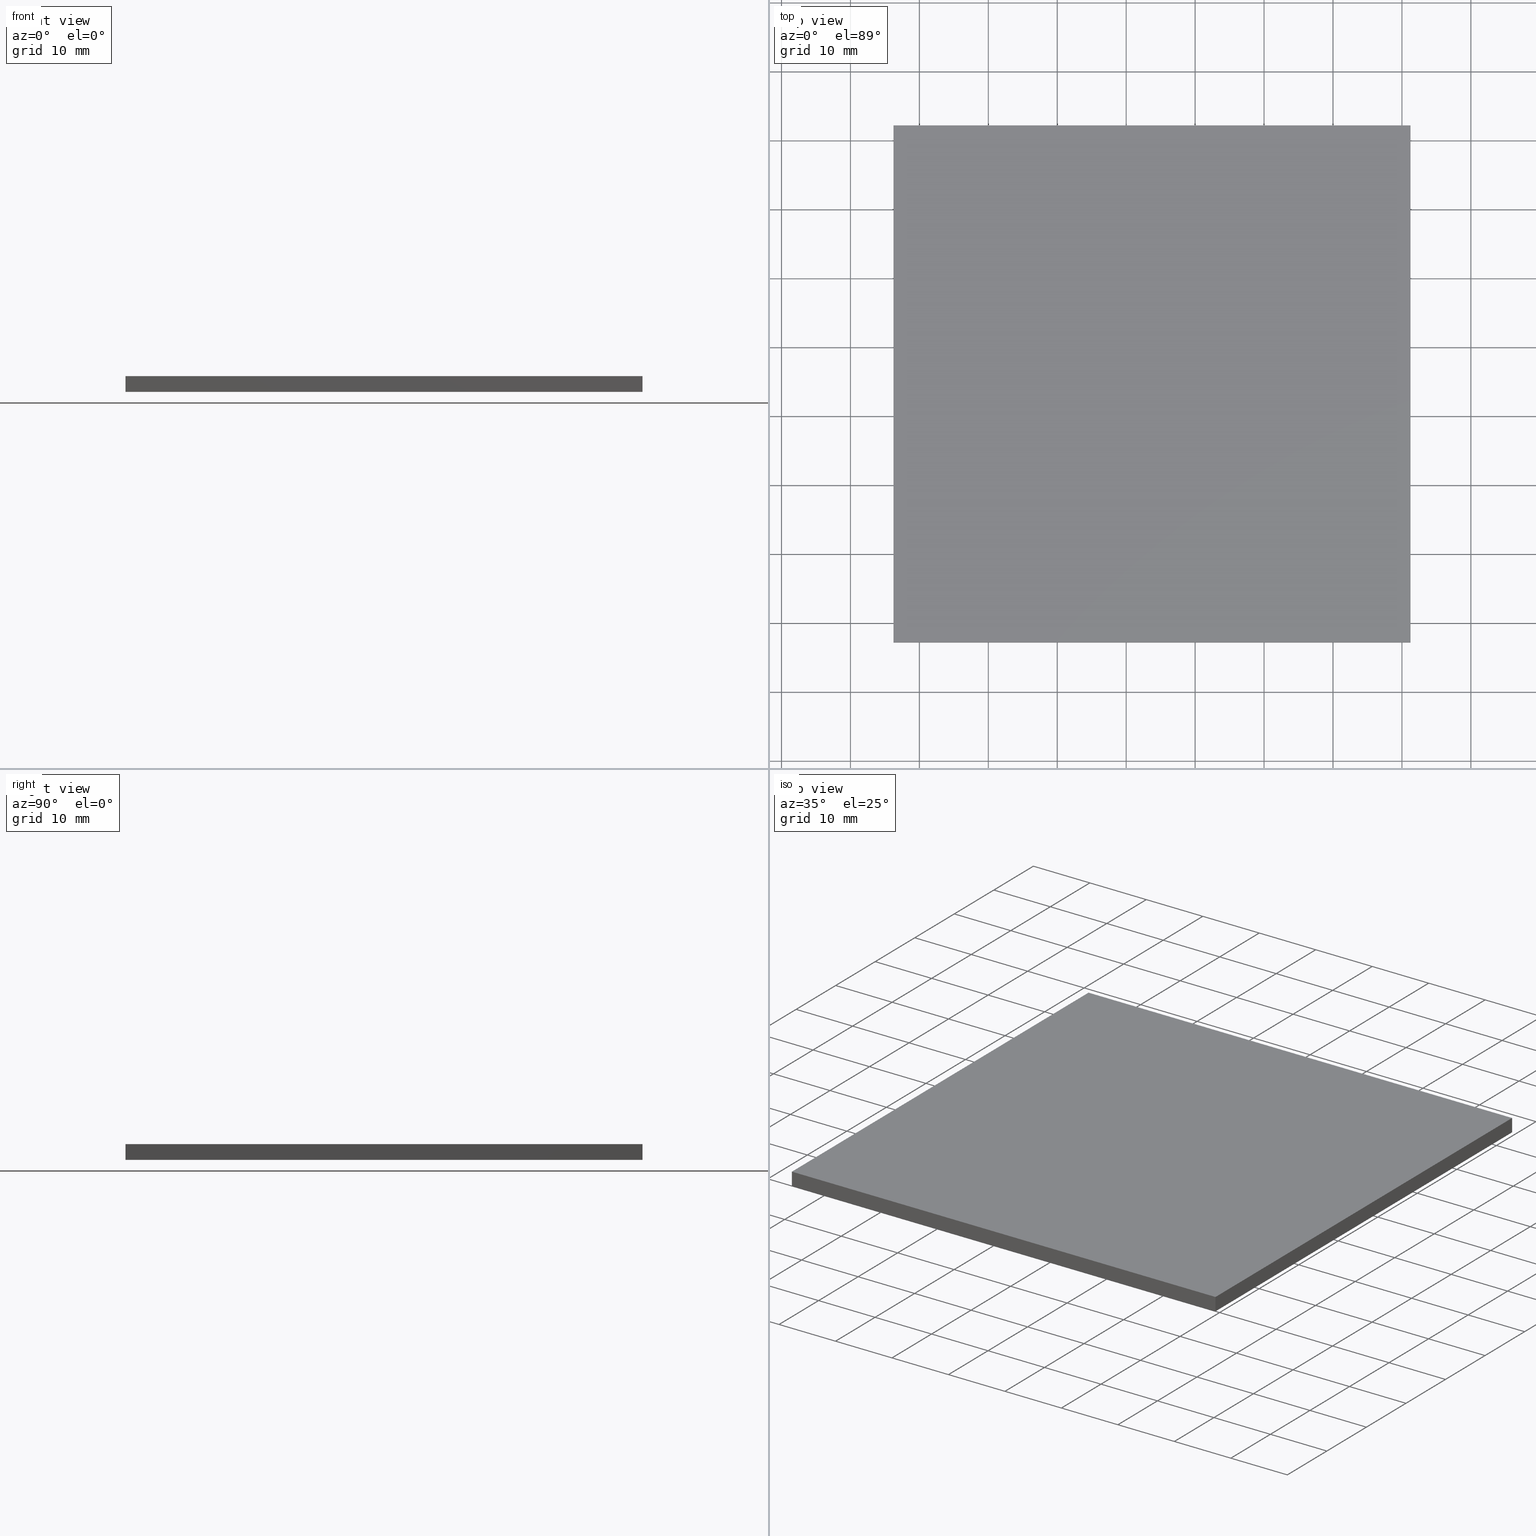
[diagram: canonical four-view strip — front | top / right | iso, engineering-drawing reading convention]
A machine part, canonical four-view strip (front | top / right | iso — engineering-drawing reading convention). The complete STEP part file that produces these views, byte-faithful:
ISO-10303-21;
HEADER;
FILE_DESCRIPTION (( 'STEP AP214' ),
    '1' );
FILE_NAME ('302527.STEP',
    '2019-08-13T07:13:10',
    ( '' ),
    ( '' ),
    'SwSTEP 2.0',
    'SolidWorks 2016',
    '' );
FILE_SCHEMA (( 'AUTOMOTIVE_DESIGN' ));
ENDSEC;

DATA;
#1 = PLANE ( 'NONE',  #106 ) ;
#2 = PRODUCT_DEFINITION ( 'δ֪', '', #193, #53 ) ;
#3 = CARTESIAN_POINT ( 'NONE',  ( 341.2438073276552500, 222.1897255035797800, 0.0000000000000000000 ) ) ;
#4 = ORIENTED_EDGE ( 'NONE', *, *, #142, .F. ) ;
#5 = AXIS2_PLACEMENT_3D ( 'NONE', #35, #39, #117 ) ;
#6 = LINE ( 'NONE', #69, #164 ) ;
#7 = SURFACE_SIDE_STYLE ('',( #42 ) ) ;
#8 = APPLICATION_PROTOCOL_DEFINITION ( 'draft international standard', 'automotive_design', 1998, #133 ) ;
#9 = PLANE ( 'NONE',  #74 ) ;
#10 = CARTESIAN_POINT ( 'NONE',  ( 341.2438073276552500, 222.1897255035797800, 2.299999999999999800 ) ) ;
#11 = ORIENTED_EDGE ( 'NONE', *, *, #107, .F. ) ;
#12 = LINE ( 'NONE', #37, #75 ) ;
#13 = FACE_OUTER_BOUND ( 'NONE', #96, .T. ) ;
#14 = MANIFOLD_SOLID_BREP ( '͹̨-����1', #131 ) ;
#15 = FACE_OUTER_BOUND ( 'NONE', #178, .T. ) ;
#16 = ORIENTED_EDGE ( 'NONE', *, *, #163, .T. ) ;
#17 = DIRECTION ( 'NONE',  ( -0.0000000000000000000, -0.0000000000000000000, -1.000000000000000000 ) ) ;
#18 = PRODUCT_CONTEXT ( 'NONE', #133, 'mechanical' ) ;
#19 = VECTOR ( 'NONE', #130, 1000.000000000000000 ) ;
#20 =( NAMED_UNIT ( * ) SI_UNIT ( $, .STERADIAN. ) SOLID_ANGLE_UNIT ( ) );
#21 = DIRECTION ( 'NONE',  ( -1.000000000000000000, -0.0000000000000000000, -0.0000000000000000000 ) ) ;
#22 = CARTESIAN_POINT ( 'NONE',  ( 266.2438073276552500, 147.1897255035798100, 2.299999999999999800 ) ) ;
#23 = VERTEX_POINT ( 'NONE', #189 ) ;
#24 =( NAMED_UNIT ( * ) SI_UNIT ( $, .STERADIAN. ) SOLID_ANGLE_UNIT ( ) );
#25 = VECTOR ( 'NONE', #46, 1000.000000000000000 ) ;
#26 = EDGE_CURVE ( 'NONE', #89, #54, #195, .T. ) ;
#27 = FACE_OUTER_BOUND ( 'NONE', #40, .T. ) ;
#28 = PRODUCT_DEFINITION_SHAPE ( 'NONE', 'NONE',  #2 ) ;
#29 = ORIENTED_EDGE ( 'NONE', *, *, #121, .T. ) ;
#30 = ADVANCED_FACE ( 'NONE', ( #169 ), #127, .F. ) ;
#31 = ADVANCED_FACE ( 'NONE', ( #173 ), #146, .T. ) ;
#32 =( NAMED_UNIT ( * ) PLANE_ANGLE_UNIT ( ) SI_UNIT ( $, .RADIAN. ) );
#33 = LINE ( 'NONE', #162, #202 ) ;
#34 = SURFACE_STYLE_USAGE ( .BOTH. , #65 ) ;
#35 = CARTESIAN_POINT ( 'NONE',  ( 266.2438073276553000, 222.1897255035797800, 2.299999999999999800 ) ) ;
#36 = DIRECTION ( 'NONE',  ( 7.401486830834381200E-016, 1.000000000000000000, 0.0000000000000000000 ) ) ;
#37 = CARTESIAN_POINT ( 'NONE',  ( 266.2438073276553000, 222.1897255035797800, 2.299999999999999800 ) ) ;
#38 = CARTESIAN_POINT ( 'NONE',  ( 266.2438073276553000, 222.1897255035797800, 2.299999999999999800 ) ) ;
#39 = DIRECTION ( 'NONE',  ( 0.0000000000000000000, -1.000000000000000000, 0.0000000000000000000 ) ) ;
#40 = EDGE_LOOP ( 'NONE', ( #16, #4, #160, #94 ) ) ;
#41 = AXIS2_PLACEMENT_3D ( 'NONE', #68, #145, #174 ) ;
#42 = SURFACE_STYLE_FILL_AREA ( #120 ) ;
#43 = FACE_OUTER_BOUND ( 'NONE', #50, .T. ) ;
#44 = DIRECTION ( 'NONE',  ( 1.000000000000000000, 0.0000000000000000000, 0.0000000000000000000 ) ) ;
#45 = DIRECTION ( 'NONE',  ( -7.401486830834381200E-016, -1.000000000000000000, 0.0000000000000000000 ) ) ;
#46 = DIRECTION ( 'NONE',  ( -1.000000000000000000, -0.0000000000000000000, -0.0000000000000000000 ) ) ;
#47 = DIRECTION ( 'NONE',  ( 0.0000000000000000000, 1.000000000000000000, 0.0000000000000000000 ) ) ;
#48 = AXIS2_PLACEMENT_3D ( 'NONE', #22, #47, #196 ) ;
#49 = ORIENTED_EDGE ( 'NONE', *, *, #110, .T. ) ;
#50 = EDGE_LOOP ( 'NONE', ( #139, #73, #51, #70 ) ) ;
#51 = ORIENTED_EDGE ( 'NONE', *, *, #26, .F. ) ;
#52 =( NAMED_UNIT ( * ) SI_UNIT ( $, .STERADIAN. ) SOLID_ANGLE_UNIT ( ) );
#53 = PRODUCT_DEFINITION_CONTEXT ( 'detailed design', #182, 'design' ) ;
#54 = VERTEX_POINT ( 'NONE', #80 ) ;
#55 = VECTOR ( 'NONE', #72, 1000.000000000000000 ) ;
#56 = MECHANICAL_DESIGN_GEOMETRIC_PRESENTATION_REPRESENTATION (  '', ( #187 ), #156 ) ;
#57 = DIRECTION ( 'NONE',  ( -0.0000000000000000000, -0.0000000000000000000, -1.000000000000000000 ) ) ;
#58 = DIRECTION ( 'NONE',  ( -0.0000000000000000000, 0.0000000000000000000, 1.000000000000000000 ) ) ;
#59 =( NAMED_UNIT ( * ) PLANE_ANGLE_UNIT ( ) SI_UNIT ( $, .RADIAN. ) );
#60 = VECTOR ( 'NONE', #129, 1000.000000000000000 ) ;
#61 =( NAMED_UNIT ( * ) PLANE_ANGLE_UNIT ( ) SI_UNIT ( $, .RADIAN. ) );
#62 = ORIENTED_EDGE ( 'NONE', *, *, #163, .F. ) ;
#63 = ORIENTED_EDGE ( 'NONE', *, *, #115, .F. ) ;
#64 = ADVANCED_FACE ( 'NONE', ( #15 ), #148, .F. ) ;
#65 = SURFACE_SIDE_STYLE ('',( #71 ) ) ;
#66 =( LENGTH_UNIT ( ) NAMED_UNIT ( * ) SI_UNIT ( .MILLI., .METRE. ) );
#67 = ORIENTED_EDGE ( 'NONE', *, *, #87, .T. ) ;
#68 = CARTESIAN_POINT ( 'NONE',  ( 0.0000000000000000000, 0.0000000000000000000, 0.0000000000000000000 ) ) ;
#69 = CARTESIAN_POINT ( 'NONE',  ( 341.2438073276552500, 222.1897255035797800, 2.299999999999999800 ) ) ;
#70 = ORIENTED_EDGE ( 'NONE', *, *, #86, .T. ) ;
#71 = SURFACE_STYLE_FILL_AREA ( #158 ) ;
#72 = DIRECTION ( 'NONE',  ( -0.0000000000000000000, -0.0000000000000000000, -1.000000000000000000 ) ) ;
#73 = ORIENTED_EDGE ( 'NONE', *, *, #87, .F. ) ;
#74 = AXIS2_PLACEMENT_3D ( 'NONE', #10, #168, #184 ) ;
#75 = VECTOR ( 'NONE', #21, 1000.000000000000000 ) ;
#76 = PRODUCT ( '302527', '302527', '', ( #18 ) ) ;
#77 = LINE ( 'NONE', #153, #55 ) ;
#78 = CARTESIAN_POINT ( 'NONE',  ( 341.2438073276552500, 147.1897255035798100, 2.299999999999999800 ) ) ;
#79 = EDGE_CURVE ( 'NONE', #201, #170, #33, .T. ) ;
#80 = CARTESIAN_POINT ( 'NONE',  ( 341.2438073276552500, 222.1897255035797800, 2.299999999999999800 ) ) ;
#81 = COLOUR_RGB ( '',1.000000000000000000, 1.000000000000000000, 1.000000000000000000 ) ;
#82 = PRESENTATION_STYLE_ASSIGNMENT (( #34 ) ) ;
#83 = PLANE ( 'NONE',  #48 ) ;
#84 = CARTESIAN_POINT ( 'NONE',  ( 0.0000000000000000000, 0.0000000000000000000, 0.0000000000000000000 ) ) ;
#85 = ORIENTED_EDGE ( 'NONE', *, *, #86, .F. ) ;
#86 = EDGE_CURVE ( 'NONE', #89, #199, #109, .T. ) ;
#87 = EDGE_CURVE ( 'NONE', #54, #23, #6, .T. ) ;
#88 = ADVANCED_FACE ( 'NONE', ( #27 ), #1, .F. ) ;
#89 = VERTEX_POINT ( 'NONE', #191 ) ;
#90 = EDGE_CURVE ( 'NONE', #199, #23, #183, .T. ) ;
#91 = AXIS2_PLACEMENT_3D ( 'NONE', #84, #99, #44 ) ;
#92 = DIRECTION ( 'NONE',  ( -0.0000000000000000000, 1.000000000000000000, -0.0000000000000000000 ) ) ;
#93 =( GEOMETRIC_REPRESENTATION_CONTEXT ( 3 ) GLOBAL_UNCERTAINTY_ASSIGNED_CONTEXT ( ( #159 ) ) GLOBAL_UNIT_ASSIGNED_CONTEXT ( ( #167, #59, #20 ) ) REPRESENTATION_CONTEXT ( 'NONE', 'WORKASPACE' ) );
#94 = ORIENTED_EDGE ( 'NONE', *, *, #79, .T. ) ;
#95 = SHAPE_DEFINITION_REPRESENTATION ( #28, #200 ) ;
#96 = EDGE_LOOP ( 'NONE', ( #179, #85, #63, #144 ) ) ;
#97 = CARTESIAN_POINT ( 'NONE',  ( 341.2438073276552500, 222.1897255035797800, 2.299999999999999800 ) ) ;
#98 = ORIENTED_EDGE ( 'NONE', *, *, #121, .F. ) ;
#99 = DIRECTION ( 'NONE',  ( 0.0000000000000000000, 0.0000000000000000000, 1.000000000000000000 ) ) ;
#100 = EDGE_CURVE ( 'NONE', #201, #140, #171, .T. ) ;
#101 = CARTESIAN_POINT ( 'NONE',  ( 266.2438073276553000, 222.1897255035797800, 0.0000000000000000000 ) ) ;
#102 = CARTESIAN_POINT ( 'NONE',  ( 266.2438073276553000, 222.1897255035797800, 2.299999999999999800 ) ) ;
#103 = ORIENTED_EDGE ( 'NONE', *, *, #110, .F. ) ;
#104 = CARTESIAN_POINT ( 'NONE',  ( 266.2438073276552500, 147.1897255035798100, 2.299999999999999800 ) ) ;
#105 = ORIENTED_EDGE ( 'NONE', *, *, #100, .T. ) ;
#106 = AXIS2_PLACEMENT_3D ( 'NONE', #38, #112, #36 ) ;
#107 = EDGE_CURVE ( 'NONE', #138, #199, #190, .T. ) ;
#108 = LINE ( 'NONE', #134, #25 ) ;
#109 = LINE ( 'NONE', #78, #19 ) ;
#110 = EDGE_CURVE ( 'NONE', #54, #201, #12, .T. ) ;
#111 = UNCERTAINTY_MEASURE_WITH_UNIT (LENGTH_MEASURE( 1.000000000000000100E-005 ), #66, 'distance_accuracy_value', 'NONE');
#112 = DIRECTION ( 'NONE',  ( 1.000000000000000000, -7.401486830834381200E-016, 0.0000000000000000000 ) ) ;
#113 = ORIENTED_EDGE ( 'NONE', *, *, #115, .T. ) ;
#114 = DIRECTION ( 'NONE',  ( -7.401486830834381200E-016, -1.000000000000000000, 0.0000000000000000000 ) ) ;
#115 = EDGE_CURVE ( 'NONE', #140, #89, #186, .T. ) ;
#116 = EDGE_LOOP ( 'NONE', ( #105, #113, #161, #49 ) ) ;
#117 = DIRECTION ( 'NONE',  ( 0.0000000000000000000, -0.0000000000000000000, -1.000000000000000000 ) ) ;
#118 = PRESENTATION_STYLE_ASSIGNMENT (( #119 ) ) ;
#119 = SURFACE_STYLE_USAGE ( .BOTH. , #7 ) ;
#120 = FILL_AREA_STYLE ('',( #135 ) ) ;
#121 = EDGE_CURVE ( 'NONE', #23, #170, #108, .T. ) ;
#122 = DIRECTION ( 'NONE',  ( 1.000000000000000000, 0.0000000000000000000, 0.0000000000000000000 ) ) ;
#123 = COLOUR_RGB ( '',1.000000000000000000, 1.000000000000000000, 1.000000000000000000 ) ;
#124 = VECTOR ( 'NONE', #92, 1000.000000000000000 ) ;
#125 = STYLED_ITEM ( 'NONE', ( #82 ), #14 ) ;
#126 = VECTOR ( 'NONE', #177, 1000.000000000000000 ) ;
#127 = PLANE ( 'NONE',  #5 ) ;
#128 = PRODUCT_RELATED_PRODUCT_CATEGORY ( 'part', '', ( #76 ) ) ;
#129 = DIRECTION ( 'NONE',  ( 1.000000000000000000, 0.0000000000000000000, 0.0000000000000000000 ) ) ;
#130 = DIRECTION ( 'NONE',  ( -0.0000000000000000000, -0.0000000000000000000, -1.000000000000000000 ) ) ;
#131 = CLOSED_SHELL ( 'NONE', ( #88, #172, #155, #30, #31, #64 ) ) ;
#132 = VECTOR ( 'NONE', #45, 1000.000000000000000 ) ;
#133 = APPLICATION_CONTEXT ( 'automotive_design' ) ;
#134 = CARTESIAN_POINT ( 'NONE',  ( 266.2438073276553000, 222.1897255035797800, 0.0000000000000000000 ) ) ;
#135 = FILL_AREA_STYLE_COLOUR ( '', #123 ) ;
#136 = ORIENTED_EDGE ( 'NONE', *, *, #79, .F. ) ;
#137 = LINE ( 'NONE', #181, #132 ) ;
#138 = VERTEX_POINT ( 'NONE', #198 ) ;
#139 = ORIENTED_EDGE ( 'NONE', *, *, #90, .T. ) ;
#140 = VERTEX_POINT ( 'NONE', #165 ) ;
#141 = FILL_AREA_STYLE_COLOUR ( '', #81 ) ;
#142 = EDGE_CURVE ( 'NONE', #140, #138, #77, .T. ) ;
#143 = CARTESIAN_POINT ( 'NONE',  ( 266.2438073276553000, 222.1897255035797800, 2.299999999999999800 ) ) ;
#144 = ORIENTED_EDGE ( 'NONE', *, *, #142, .T. ) ;
#145 = DIRECTION ( 'NONE',  ( -0.0000000000000000000, 0.0000000000000000000, 1.000000000000000000 ) ) ;
#146 = PLANE ( 'NONE',  #154 ) ;
#147 = DIRECTION ( 'NONE',  ( 1.000000000000000000, 0.0000000000000000000, 0.0000000000000000000 ) ) ;
#148 = PLANE ( 'NONE',  #41 ) ;
#149 =( LENGTH_UNIT ( ) NAMED_UNIT ( * ) SI_UNIT ( .MILLI., .METRE. ) );
#150 = APPLICATION_PROTOCOL_DEFINITION ( 'draft international standard', 'automotive_design', 1998, #182 ) ;
#151 = CARTESIAN_POINT ( 'NONE',  ( 341.2438073276552500, 147.1897255035798100, 0.0000000000000000000 ) ) ;
#152 = VECTOR ( 'NONE', #122, 1000.000000000000000 ) ;
#153 = CARTESIAN_POINT ( 'NONE',  ( 266.2438073276552500, 147.1897255035798100, 2.299999999999999800 ) ) ;
#154 = AXIS2_PLACEMENT_3D ( 'NONE', #192, #58, #147 ) ;
#155 = ADVANCED_FACE ( 'NONE', ( #43 ), #9, .F. ) ;
#156 =( GEOMETRIC_REPRESENTATION_CONTEXT ( 3 ) GLOBAL_UNCERTAINTY_ASSIGNED_CONTEXT ( ( #194 ) ) GLOBAL_UNIT_ASSIGNED_CONTEXT ( ( #149, #61, #24 ) ) REPRESENTATION_CONTEXT ( 'NONE', 'WORKASPACE' ) );
#157 = VECTOR ( 'NONE', #114, 1000.000000000000000 ) ;
#158 = FILL_AREA_STYLE ('',( #141 ) ) ;
#159 = UNCERTAINTY_MEASURE_WITH_UNIT (LENGTH_MEASURE( 1.000000000000000100E-005 ), #167, 'distance_accuracy_value', 'NONE');
#160 = ORIENTED_EDGE ( 'NONE', *, *, #100, .F. ) ;
#161 = ORIENTED_EDGE ( 'NONE', *, *, #26, .T. ) ;
#162 = CARTESIAN_POINT ( 'NONE',  ( 266.2438073276553000, 222.1897255035797800, 2.299999999999999800 ) ) ;
#163 = EDGE_CURVE ( 'NONE', #170, #138, #137, .T. ) ;
#164 = VECTOR ( 'NONE', #17, 1000.000000000000000 ) ;
#165 = CARTESIAN_POINT ( 'NONE',  ( 266.2438073276552500, 147.1897255035798100, 2.299999999999999800 ) ) ;
#166 = PRESENTATION_LAYER_ASSIGNMENT (  '', '', ( #125 ) ) ;
#167 =( LENGTH_UNIT ( ) NAMED_UNIT ( * ) SI_UNIT ( .MILLI., .METRE. ) );
#168 = DIRECTION ( 'NONE',  ( -1.000000000000000000, 0.0000000000000000000, 0.0000000000000000000 ) ) ;
#169 = FACE_OUTER_BOUND ( 'NONE', #188, .T. ) ;
#170 = VERTEX_POINT ( 'NONE', #101 ) ;
#171 = LINE ( 'NONE', #143, #157 ) ;
#172 = ADVANCED_FACE ( 'NONE', ( #13 ), #83, .F. ) ;
#173 = FACE_OUTER_BOUND ( 'NONE', #116, .T. ) ;
#174 = DIRECTION ( 'NONE',  ( 1.000000000000000000, 0.0000000000000000000, 0.0000000000000000000 ) ) ;
#175 = PRESENTATION_LAYER_ASSIGNMENT (  '', '', ( #187 ) ) ;
#176 = CARTESIAN_POINT ( 'NONE',  ( 266.2438073276552500, 147.1897255035798100, 0.0000000000000000000 ) ) ;
#177 = DIRECTION ( 'NONE',  ( -0.0000000000000000000, 1.000000000000000000, -0.0000000000000000000 ) ) ;
#178 = EDGE_LOOP ( 'NONE', ( #62, #98, #185, #11 ) ) ;
#179 = ORIENTED_EDGE ( 'NONE', *, *, #107, .T. ) ;
#180 = MECHANICAL_DESIGN_GEOMETRIC_PRESENTATION_REPRESENTATION (  '', ( #125 ), #197 ) ;
#181 = CARTESIAN_POINT ( 'NONE',  ( 266.2438073276553000, 222.1897255035797800, 0.0000000000000000000 ) ) ;
#182 = APPLICATION_CONTEXT ( 'automotive_design' ) ;
#183 = LINE ( 'NONE', #3, #124 ) ;
#184 = DIRECTION ( 'NONE',  ( 0.0000000000000000000, 0.0000000000000000000, 1.000000000000000000 ) ) ;
#185 = ORIENTED_EDGE ( 'NONE', *, *, #90, .F. ) ;
#186 = LINE ( 'NONE', #104, #152 ) ;
#187 = STYLED_ITEM ( 'NONE', ( #118 ), #200 ) ;
#188 = EDGE_LOOP ( 'NONE', ( #29, #136, #103, #67 ) ) ;
#189 = CARTESIAN_POINT ( 'NONE',  ( 341.2438073276552500, 222.1897255035797800, 0.0000000000000000000 ) ) ;
#190 = LINE ( 'NONE', #176, #60 ) ;
#191 = CARTESIAN_POINT ( 'NONE',  ( 341.2438073276552500, 147.1897255035798100, 2.299999999999999800 ) ) ;
#192 = CARTESIAN_POINT ( 'NONE',  ( 0.0000000000000000000, 0.0000000000000000000, 2.299999999999999800 ) ) ;
#193 = PRODUCT_DEFINITION_FORMATION_WITH_SPECIFIED_SOURCE ( '�κ�', '', #76, .NOT_KNOWN. ) ;
#194 = UNCERTAINTY_MEASURE_WITH_UNIT (LENGTH_MEASURE( 1.000000000000000100E-005 ), #149, 'distance_accuracy_value', 'NONE');
#195 = LINE ( 'NONE', #97, #126 ) ;
#196 = DIRECTION ( 'NONE',  ( 0.0000000000000000000, -0.0000000000000000000, 1.000000000000000000 ) ) ;
#197 =( GEOMETRIC_REPRESENTATION_CONTEXT ( 3 ) GLOBAL_UNCERTAINTY_ASSIGNED_CONTEXT ( ( #111 ) ) GLOBAL_UNIT_ASSIGNED_CONTEXT ( ( #66, #32, #52 ) ) REPRESENTATION_CONTEXT ( 'NONE', 'WORKASPACE' ) );
#198 = CARTESIAN_POINT ( 'NONE',  ( 266.2438073276552500, 147.1897255035798100, 0.0000000000000000000 ) ) ;
#199 = VERTEX_POINT ( 'NONE', #151 ) ;
#200 = ADVANCED_BREP_SHAPE_REPRESENTATION ( '302527', ( #14, #91 ), #93 ) ;
#201 = VERTEX_POINT ( 'NONE', #102 ) ;
#202 = VECTOR ( 'NONE', #57, 1000.000000000000000 ) ;
ENDSEC;
END-ISO-10303-21;
